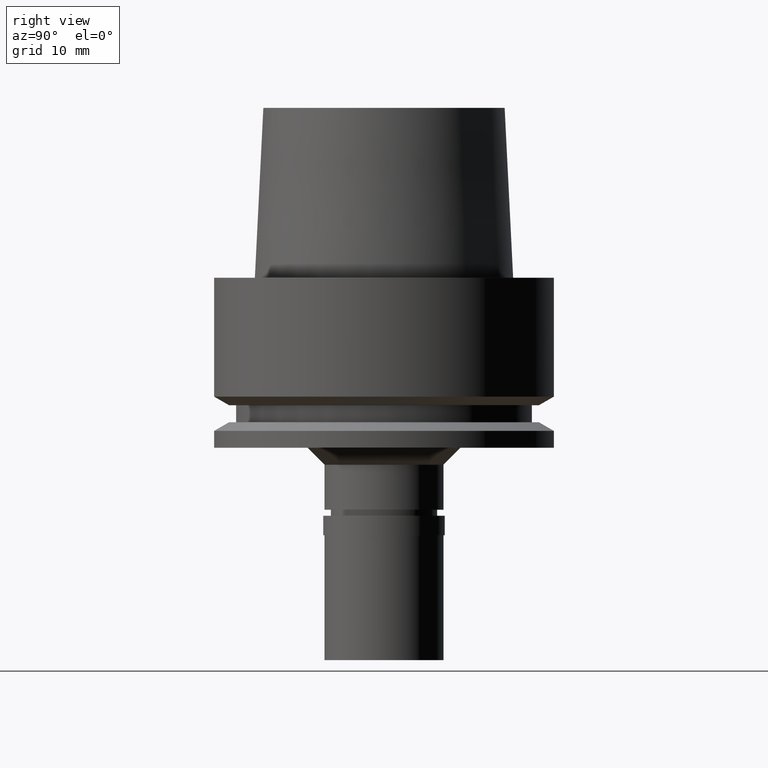
[diagram: clean part render]
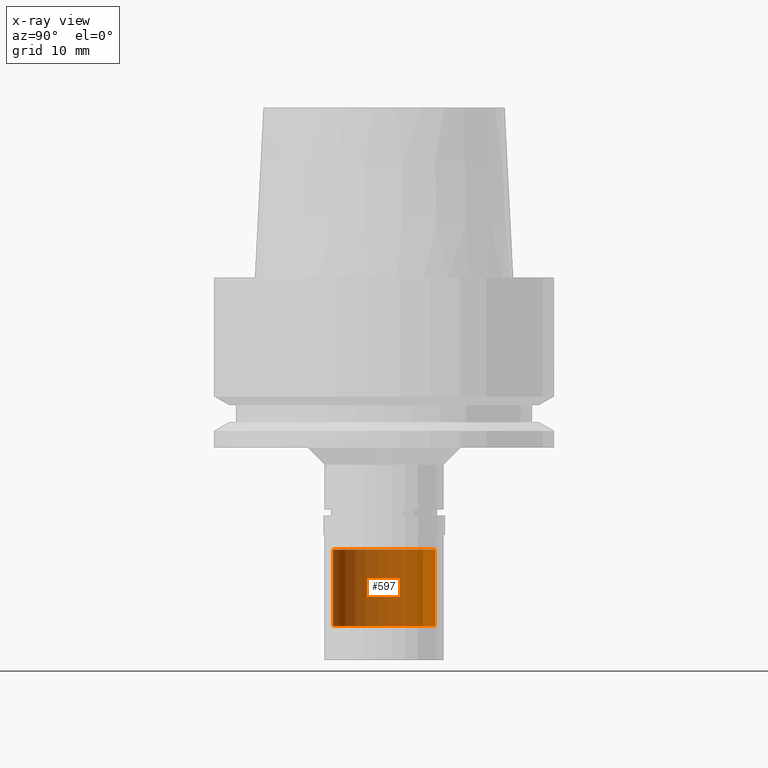
[diagram: x-ray — body ghosted, one internal face saturated and labeled with its STEP entity id]
A machine part, right view, then the same camera in x-ray: the body is ghosted and one INTERNAL B-rep face — a face not visible from any outside direction — is saturated and labeled: STEP entity #597.
In plain terms, the highlighted cylindrical surface (partial cylindrical patch) has radius 6 mm, axis along (0, 0, 1).
Its self-contained STEP definition (entity closure, byte-faithful):
#83 = CARTESIAN_POINT ( 'NONE',  ( 0.0000000000000000000, 6.000000000000000000, -41.00000000000000000 ) ) ;
#84 = CARTESIAN_POINT ( 'NONE',  ( 0.0000000000000000000, 0.0000000000000000000, -41.00000000000000000 ) ) ;
#132 = EDGE_CURVE ( 'NONE', #2006, #2603, #143, .T. ) ;
#143 = LINE ( 'NONE', #1807, #2191 ) ;
#233 = DIRECTION ( 'NONE',  ( 0.0000000000000000000, 0.0000000000000000000, -1.000000000000000000 ) ) ;
#243 = CARTESIAN_POINT ( 'NONE',  ( 0.0000000000000000000, -6.000000000000000000, -32.00000000000000000 ) ) ;
#259 = VERTEX_POINT ( 'NONE', #1690 ) ;
#564 = DIRECTION ( 'NONE',  ( 0.0000000000000000000, 0.0000000000000000000, 1.000000000000000000 ) ) ;
#597 = ADVANCED_FACE ( 'NONE', ( #1468 ), #1062, .T. ) ;
#608 = DIRECTION ( 'NONE',  ( 0.0000000000000000000, -1.000000000000000000, 0.0000000000000000000 ) ) ;
#756 = ORIENTED_EDGE ( 'NONE', *, *, #1522, .F. ) ;
#761 = DIRECTION ( 'NONE',  ( 0.0000000000000000000, 0.0000000000000000000, 1.000000000000000000 ) ) ;
#890 = CARTESIAN_POINT ( 'NONE',  ( 0.0000000000000000000, -6.000000000000000000, -41.00000000000000000 ) ) ;
#986 = CIRCLE ( 'NONE', #2498, 6.000000000000000000 ) ;
#1062 = CYLINDRICAL_SURFACE ( 'NONE', #1813, 6.000000000000000000 ) ;
#1071 = CARTESIAN_POINT ( 'NONE',  ( 0.0000000000000000000, 0.0000000000000000000, -44.04999999999999716 ) ) ;
#1124 = CARTESIAN_POINT ( 'NONE',  ( 0.0000000000000000000, 6.000000000000000000, -32.00000000000000000 ) ) ;
#1187 = EDGE_CURVE ( 'NONE', #2603, #2591, #2323, .T. ) ;
#1280 = ORIENTED_EDGE ( 'NONE', *, *, #1187, .T. ) ;
#1333 = EDGE_CURVE ( 'NONE', #259, #2006, #986, .T. ) ;
#1379 = AXIS2_PLACEMENT_3D ( 'NONE', #84, #564, #1789 ) ;
#1468 = FACE_OUTER_BOUND ( 'NONE', #2649, .T. ) ;
#1480 = DIRECTION ( 'NONE',  ( 0.0000000000000000000, 1.000000000000000000, 0.0000000000000000000 ) ) ;
#1522 = EDGE_CURVE ( 'NONE', #259, #2591, #2334, .T. ) ;
#1634 = ORIENTED_EDGE ( 'NONE', *, *, #1333, .T. ) ;
#1690 = CARTESIAN_POINT ( 'NONE',  ( 0.0000000000000000000, -6.000000000000000000, -32.00000000000000000 ) ) ;
#1789 = DIRECTION ( 'NONE',  ( 0.0000000000000000000, 1.000000000000000000, 0.0000000000000000000 ) ) ;
#1807 = CARTESIAN_POINT ( 'NONE',  ( 0.0000000000000000000, 6.000000000000000000, -32.00000000000000000 ) ) ;
#1813 = AXIS2_PLACEMENT_3D ( 'NONE', #1071, #761, #1480 ) ;
#1889 = DIRECTION ( 'NONE',  ( 0.0000000000000000000, 0.0000000000000000000, -1.000000000000000000 ) ) ;
#2006 = VERTEX_POINT ( 'NONE', #1124 ) ;
#2023 = CARTESIAN_POINT ( 'NONE',  ( 0.0000000000000000000, 0.0000000000000000000, -32.00000000000000000 ) ) ;
#2191 = VECTOR ( 'NONE', #2635, 1000.000000000000000 ) ;
#2235 = ORIENTED_EDGE ( 'NONE', *, *, #132, .T. ) ;
#2323 = CIRCLE ( 'NONE', #1379, 6.000000000000000000 ) ;
#2334 = LINE ( 'NONE', #243, #2499 ) ;
#2498 = AXIS2_PLACEMENT_3D ( 'NONE', #2023, #233, #608 ) ;
#2499 = VECTOR ( 'NONE', #1889, 1000.000000000000000 ) ;
#2591 = VERTEX_POINT ( 'NONE', #890 ) ;
#2603 = VERTEX_POINT ( 'NONE', #83 ) ;
#2635 = DIRECTION ( 'NONE',  ( 0.0000000000000000000, 0.0000000000000000000, -1.000000000000000000 ) ) ;
#2649 = EDGE_LOOP ( 'NONE', ( #1280, #756, #1634, #2235 ) ) ;